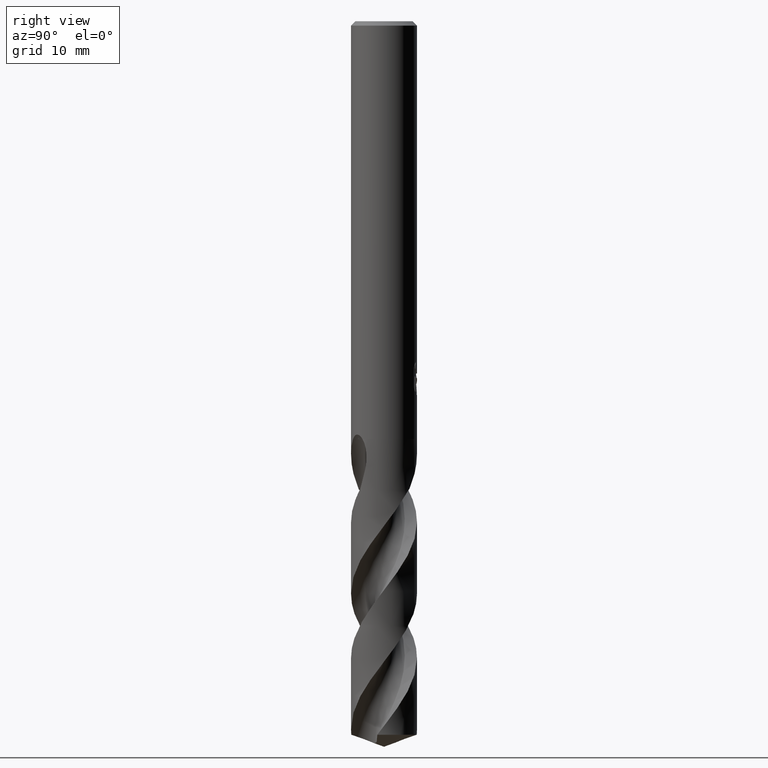
[diagram: clean part render]
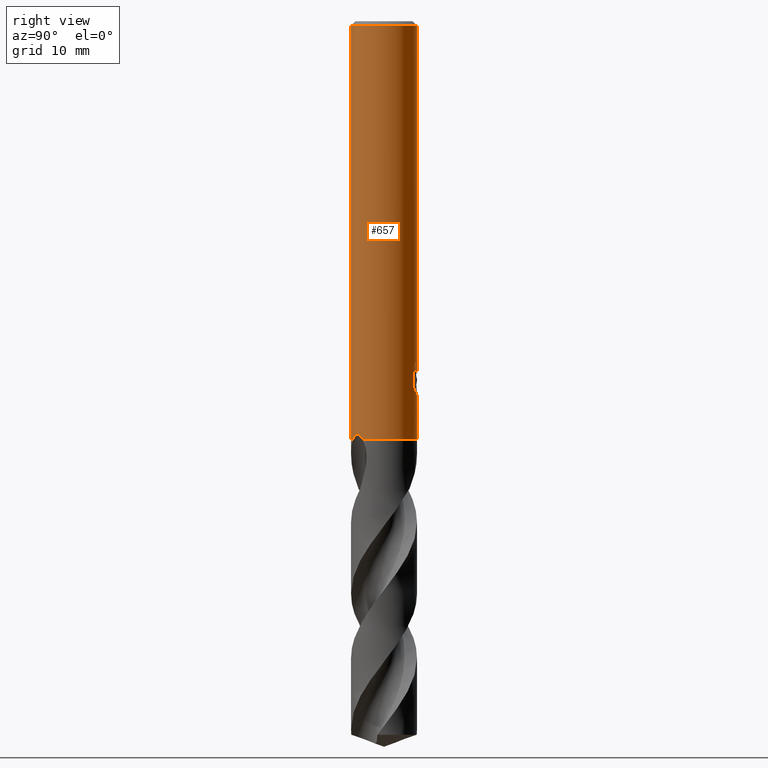
[diagram: same view with one face highlighted and labeled with its STEP entity id]
A machine part, right view. The second image highlights one B-rep face of the part: STEP entity #657.
In plain terms, the highlighted cylindrical surface (edge-blend (fillet) strip) has radius 3 mm, axis along (-0, -0, 1).
Its self-contained STEP definition (entity closure, byte-faithful):
#269=EDGE_CURVE('',#685,#595,#729,.T.);
#275=VERTEX_POINT('',#735);
#287=EDGE_CURVE('',#569,#531,#748,.T.);
#301=VERTEX_POINT('',#763);
#303=EDGE_CURVE('',#531,#301,#765,.T.);
#309=EDGE_CURVE('',#331,#569,#771,.T.);
#323=VERTEX_POINT('',#788);
#331=VERTEX_POINT('',#798);
#341=VERTEX_POINT('',#809);
#347=VERTEX_POINT('',#815);
#379=EDGE_CURVE('',#341,#655,#849,.T.);
#411=EDGE_CURVE('',#347,#275,#884,.T.);
#415=VERTEX_POINT('',#888);
#461=EDGE_CURVE('',#341,#503,#937,.T.);
#469=EDGE_CURVE('',#651,#415,#947,.T.);
#475=EDGE_CURVE('',#651,#275,#953,.T.);
#503=VERTEX_POINT('',#985);
#531=VERTEX_POINT('',#1015);
#533=EDGE_CURVE('',#301,#685,#1017,.T.);
#553=EDGE_CURVE('',#331,#347,#1038,.T.);
#569=VERTEX_POINT('',#1055);
#595=VERTEX_POINT('',#1083);
#617=EDGE_CURVE('',#415,#655,#1108,.T.);
#639=EDGE_CURVE('',#323,#503,#1133,.T.);
#651=VERTEX_POINT('',#1145);
#655=VERTEX_POINT('',#1149);
#657=ADVANCED_FACE('',(#1151),#1152,.T.);
#669=EDGE_CURVE('',#595,#323,#1167,.T.);
#685=VERTEX_POINT('',#1183);
#729=LINE('',#1311,#1312);
#735=CARTESIAN_POINT('',(2.27220909638314,-1.95884298051521,-38.0));
#748=ELLIPSE('',#1349,9.14398372010932,3.0);
#763=CARTESIAN_POINT('',(0.873560781758956,2.86999852971612,-33.7587351791531));
#765=LINE('',#1457,#1458);
#771=B_SPLINE_CURVE_WITH_KNOTS('',3,(#1487,#1488,#1489,#1490,#1491,#1492,#1493,#1494,#1495,#1496,#1497,#1498,#1499,#1500,#1501,#1502),.UNSPECIFIED.,.F.,.F.,(4,2,2,2,2,2,2,4),(5.66023402257373,6.29060333517104,6.60504483258975,6.91948633000846,7.23392782742717,7.54836932484587,7.86141901111221,8.17446869737855),.UNSPECIFIED.);
#788=CARTESIAN_POINT('',(0.799431726384364,2.89152363207533,-31.000000276873));
#798=CARTESIAN_POINT('',(-2.46407913303377E-016,3.0,-34.0310253601033));
#809=CARTESIAN_POINT('',(0.0,3.0,-0.399999999999999));
#815=CARTESIAN_POINT('',(-3.67381906146713E-016,3.0,-38.0));
#849=CIRCLE('',#2292,3.0);
#884=CIRCLE('',#2493,3.0);
#888=CARTESIAN_POINT('',(3.67381906146713E-016,-3.0,-38.0));
#937=LINE('',#2808,#2809);
#947=CIRCLE('',#3036,3.0);
#953=B_SPLINE_CURVE_WITH_KNOTS('',3,(#3049,#3050,#3051,#3052,#3053,#3054,#3055,#3056,#3057,#3058,#3059,#3060),.UNSPECIFIED.,.F.,.F.,(4,2,2,2,2,4),(0.0,0.566571146386598,0.910751921865325,1.19368021037838,1.47913200193668,1.78513918168508),.UNSPECIFIED.);
#985=CARTESIAN_POINT('',(-1.20768269592175E-015,3.0,-32.0232688117743));
#1015=CARTESIAN_POINT('',(0.873560781758957,2.86999852971612,-32.3198931596091));
#1017=B_SPLINE_CURVE_WITH_KNOTS('',3,(#3271,#3272,#3273,#3274,#3275,#3276,#3277,#3278),.UNSPECIFIED.,.F.,.F.,(4,2,2,4),(8.17446522132897,8.48751487521068,8.80056452909238,9.43014514523744),.UNSPECIFIED.);
#1038=LINE('',#3444,#3445);
#1055=CARTESIAN_POINT('',(0.29010312703583,2.98594041730307,-33.9998328990228));
#1083=CARTESIAN_POINT('',(1.33721006514658,2.68549236485057,-31.5150484364821));
#1108=LINE('',#4697,#4698);
#1133=B_SPLINE_CURVE_WITH_KNOTS('',3,(#4733,#4734,#4735,#4736,#4737,#4738,#4739,#4740,#4741,#4742,#4743,#4744,#4745,#4746,#4747,#4748,#4749,#4750,#4751,#4752,#4753,#4754,#4755,#4756,#4757,#4758,#4759),.UNSPECIFIED.,.F.,.F.,(4,2,3,2,2,2,2,2,2,2,2,2,4),(-0.54422824842136,-0.27211412421068,0.0,0.272114124210678,0.544228248421357,0.817906359646673,1.09158447087199,1.36255924571499,1.63353402055798,1.90530456554772,2.17707511053746,2.4488456555272,2.72061620051693),.UNSPECIFIED.);
#1145=CARTESIAN_POINT('',(1.02400952250009,-2.81982348699864,-38.0));
#1149=CARTESIAN_POINT('',(3.67381906146713E-016,-3.0,-0.399999999999999));
#1151=FACE_OUTER_BOUND('',#4782,.T.);
#1152=CYLINDRICAL_SURFACE('',#4783,3.0);
#1167=B_SPLINE_CURVE_WITH_KNOTS('',3,(#4807,#4808,#4809,#4810,#4811,#4812,#4813,#4814),.UNSPECIFIED.,.F.,.F.,(4,2,2,4),(0.629580638580865,1.25916127716173,1.57221094126725,1.88526060537277),.UNSPECIFIED.);
#1183=CARTESIAN_POINT('',(1.33721006514658,2.68549236485056,-33.2901657003257));
#1311=CARTESIAN_POINT('',(1.33721006514658,2.68549236485056,-32.4026070684039));
#1312=VECTOR('',#4967,1.0);
#1349=AXIS2_PLACEMENT_3D('',#4979,#4980,#4981);
#1457=CARTESIAN_POINT('',(0.873560781758957,2.86999852971612,-33.0393141693811));
#1458=VECTOR('',#4996,1.0);
#1487=CARTESIAN_POINT('',(-1.53050642192579,2.58022287650581,-33.0319811255889));
#1488=CARTESIAN_POINT('',(-1.44691631248335,2.62980577312329,-33.2314887010961));
#1489=CARTESIAN_POINT('',(-1.32276760444366,2.69707077181617,-33.4113258593841));
#1490=CARTESIAN_POINT('',(-1.10973155101076,2.78826898930335,-33.6245951706909));
#1491=CARTESIAN_POINT('',(-1.02948996220254,2.81934349084513,-33.6916117853674));
#1492=CARTESIAN_POINT('',(-0.853932698223484,2.87738531454781,-33.8105216600777));
#1493=CARTESIAN_POINT('',(-0.758609991487907,2.90431263574779,-33.8624240602539));
#1494=CARTESIAN_POINT('',(-0.558469552260235,2.94934446690523,-33.9464055954533));
#1495=CARTESIAN_POINT('',(-0.453457041446381,2.96746268462387,-33.9785511641911));
#1496=CARTESIAN_POINT('',(-0.240810292537893,2.99223469602914,-34.0209924679526));
#1497=CARTESIAN_POINT('',(-0.133171317626829,2.99887501234033,-34.0312723335086));
#1498=CARTESIAN_POINT('',(0.0759830626177195,3.00085245803086,-34.0312723335086));
#1499=CARTESIAN_POINT('',(0.183273473896684,2.99629272230549,-34.0210815541729));
#1500=CARTESIAN_POINT('',(0.39543915272815,2.97573303917486,-33.9788816901513));
#1501=CARTESIAN_POINT('',(0.500318639064909,2.95974677710468,-33.9468871509919));
#1502=CARTESIAN_POINT('',(0.600330982089903,2.93932011049205,-33.9050368602192));
#2292=AXIS2_PLACEMENT_3D('',#5104,#5105,#5106);
#2493=AXIS2_PLACEMENT_3D('',#5136,#5137,#5138);
#2808=CARTESIAN_POINT('',(-3.67381906146713E-016,3.0,-37.0));
#2809=VECTOR('',#5195,1.0);
#3036=AXIS2_PLACEMENT_3D('',#5214,#5215,#5216);
#3049=CARTESIAN_POINT('',(1.02400952250009,-2.81982348699863,-38.0));
#3050=CARTESIAN_POINT('',(1.15466996109983,-2.77237458320835,-37.8721585505645));
#3051=CARTESIAN_POINT('',(1.30089955384537,-2.70879676929085,-37.7524070752747));
#3052=CARTESIAN_POINT('',(1.54419946884868,-2.57419682473317,-37.6315133844407));
#3053=CARTESIAN_POINT('',(1.63831877063902,-2.515749009101,-37.602162333192));
#3054=CARTESIAN_POINT('',(1.80848812215519,-2.39545619521912,-37.5952936335916));
#3055=CARTESIAN_POINT('',(1.88071099267584,-2.33896646251829,-37.6096883794318));
#3056=CARTESIAN_POINT('',(2.01596771167184,-2.22347758630175,-37.6734029299133));
#3057=CARTESIAN_POINT('',(2.07565875844847,-2.16729682246502,-37.7214807300166));
#3058=CARTESIAN_POINT('',(2.18430978789275,-2.05794834019253,-37.8436944219673));
#3059=CARTESIAN_POINT('',(2.2318320178391,-2.00567938652925,-37.919016194777));
#3060=CARTESIAN_POINT('',(2.27220909638314,-1.95884298051521,-38.0));
#3271=CARTESIAN_POINT('',(0.600330703923335,2.93932016730517,-33.9050364278969));
#3272=CARTESIAN_POINT('',(0.700343038443484,2.91889351228921,-33.8631861412044));
#3273=CARTESIAN_POINT('',(0.795685584213131,2.8940165604303,-33.8114119954011));
#3274=CARTESIAN_POINT('',(0.971352589628262,2.83988055167306,-33.692706383359));
#3275=CARTESIAN_POINT('',(1.0516835476539,2.81066216129401,-33.6257659914415));
#3276=CARTESIAN_POINT('',(1.26543925920527,2.72440179743877,-33.4122346680481));
#3277=CARTESIAN_POINT('',(1.3899740959159,2.66030349847411,-33.2319488826214));
#3278=CARTESIAN_POINT('',(1.47371594109741,2.61307507066968,-33.0321377817991));
#3444=CARTESIAN_POINT('',(-3.67381906146713E-016,3.0,-37.0));
#3445=VECTOR('',#5302,1.0);
#4697=CARTESIAN_POINT('',(3.67381906146713E-016,-3.0,-37.0));
#4698=VECTOR('',#5372,1.0);
#4733=CARTESIAN_POINT('',(0.665621182276714,2.92522622060321,-30.8140957881762));
#4734=CARTESIAN_POINT('',(0.728850563417096,2.91083867849353,-30.877518087557));
#4735=CARTESIAN_POINT('',(0.783900459387161,2.89602337967411,-30.9578702196133));
#4736=CARTESIAN_POINT('',(0.857188692916628,2.87518328740958,-31.1345580124299));
#4737=CARTESIAN_POINT('',(0.875400981188567,2.86943777108584,-31.2309373045166));
#4738=CARTESIAN_POINT('',(0.875400981188567,2.86943777108584,-31.3216420125868));
#4739=CARTESIAN_POINT('',(0.875400981188567,2.86943777108584,-31.412346720657));
#4740=CARTESIAN_POINT('',(0.857188692916629,2.87518328740958,-31.5087260127437));
#4741=CARTESIAN_POINT('',(0.783900459387161,2.89602337967411,-31.6854138055602));
#4742=CARTESIAN_POINT('',(0.728850563417096,2.91083867849353,-31.7657659376165));
#4743=CARTESIAN_POINT('',(0.60202838769231,2.93969645569731,-31.8929750586276));
#4744=CARTESIAN_POINT('',(0.5214778595293,2.95568533572518,-31.9483797636259));
#4745=CARTESIAN_POINT('',(0.34429909105015,2.98152194310932,-32.0221641076746));
#4746=CARTESIAN_POINT('',(0.247628172090375,2.99115403786358,-32.0405166027747));
#4747=CARTESIAN_POINT('',(0.0663244946631877,3.00062654348629,-32.0405166027747));
#4748=CARTESIAN_POINT('',(-0.0299285908853379,3.00115720326599,-32.0224875186921));
#4749=CARTESIAN_POINT('',(-0.206881310600538,2.99416773126077,-31.949244373347));
#4750=CARTESIAN_POINT('',(-0.287593937381961,2.98687212067831,-31.8940404490632));
#4751=CARTESIAN_POINT('',(-0.415200117492864,2.97182576996222,-31.7666805419979));
#4752=CARTESIAN_POINT('',(-0.470604049431396,2.96309385107775,-31.6859121102136));
#4753=CARTESIAN_POINT('',(-0.544183869965539,2.95046729924835,-31.5086992019516));
#4754=CARTESIAN_POINT('',(-0.562348199187247,2.94682278104247,-31.41223219425));
#4755=CARTESIAN_POINT('',(-0.562348199187247,2.94682278104247,-31.2310518309235));
#4756=CARTESIAN_POINT('',(-0.54418386996554,2.95046729924835,-31.134584823222));
#4757=CARTESIAN_POINT('',(-0.4706040494314,2.96309385107775,-30.95737191496));
#4758=CARTESIAN_POINT('',(-0.415200117492863,2.97182576996222,-30.8766034831756));
#4759=CARTESIAN_POINT('',(-0.351303479704285,2.97935997575782,-30.812830162452));
#4782=EDGE_LOOP('',(#5436,#5437,#5438,#5439,#5440,#5441,#5442,#5443,#5444,#5445,#5446,#5447,#5448,#5449));
#4783=AXIS2_PLACEMENT_3D('',#5450,#5451,#5452);
#4807=CARTESIAN_POINT('',(1.47371594887933,2.61307506628086,-31.7730763684241));
#4808=CARTESIAN_POINT('',(1.38997410067862,2.66030349611674,-31.5732652606136));
#4809=CARTESIAN_POINT('',(1.2654392594963,2.72440179761724,-31.3929794688919));
#4810=CARTESIAN_POINT('',(1.05168354029617,2.81066216411606,-31.1794481382038));
#4811=CARTESIAN_POINT('',(0.971352579549231,2.83988055521709,-31.1125077441098));
#4812=CARTESIAN_POINT('',(0.795685568183073,2.89401656493242,-30.9938021282019));
#4813=CARTESIAN_POINT('',(0.700343019183212,2.91889351702519,-30.9420279807093));
#4814=CARTESIAN_POINT('',(0.600330681290245,2.93932017192779,-30.9001776926585));
#4967=DIRECTION('',(-0.0,-0.0,1.0));
#4979=CARTESIAN_POINT('',(0.0,0.0,-34.8351219173269));
#4980=DIRECTION('',(0.944648353914092,0.0,-0.328084573619969));
#4981=DIRECTION('',(0.328084573619969,-0.0,0.944648353914092));
#4996=DIRECTION('',(0.0,0.0,-1.0));
#5104=CARTESIAN_POINT('',(0.0,0.0,-0.399999999999999));
#5105=DIRECTION('',(0.0,0.0,-1.0));
#5106=DIRECTION('',(0.0,1.0,0.0));
#5136=CARTESIAN_POINT('',(0.0,0.0,-38.0));
#5137=DIRECTION('',(0.0,0.0,-1.0));
#5138=DIRECTION('',(0.0,1.0,0.0));
#5195=DIRECTION('',(0.0,0.0,-1.0));
#5214=CARTESIAN_POINT('',(0.0,0.0,-38.0));
#5215=DIRECTION('',(0.0,0.0,-1.0));
#5216=DIRECTION('',(0.0,1.0,0.0));
#5302=DIRECTION('',(0.0,0.0,-1.0));
#5372=DIRECTION('',(-0.0,-0.0,1.0));
#5436=ORIENTED_EDGE('',*,*,#461,.F.);
#5437=ORIENTED_EDGE('',*,*,#379,.T.);
#5438=ORIENTED_EDGE('',*,*,#617,.F.);
#5439=ORIENTED_EDGE('',*,*,#469,.F.);
#5440=ORIENTED_EDGE('',*,*,#475,.T.);
#5441=ORIENTED_EDGE('',*,*,#411,.F.);
#5442=ORIENTED_EDGE('',*,*,#553,.F.);
#5443=ORIENTED_EDGE('',*,*,#309,.T.);
#5444=ORIENTED_EDGE('',*,*,#287,.T.);
#5445=ORIENTED_EDGE('',*,*,#303,.T.);
#5446=ORIENTED_EDGE('',*,*,#533,.T.);
#5447=ORIENTED_EDGE('',*,*,#269,.T.);
#5448=ORIENTED_EDGE('',*,*,#669,.T.);
#5449=ORIENTED_EDGE('',*,*,#639,.T.);
#5450=CARTESIAN_POINT('',(0.0,0.0,-37.0));
#5451=DIRECTION('',(-0.0,-0.0,1.0));
#5452=DIRECTION('',(0.0,1.0,0.0));